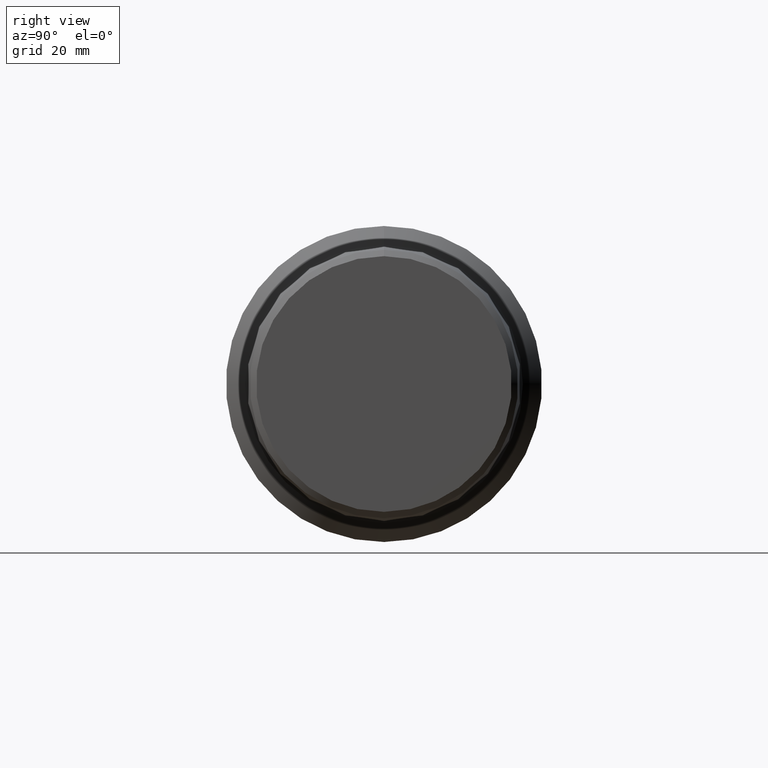
[diagram: clean part render]
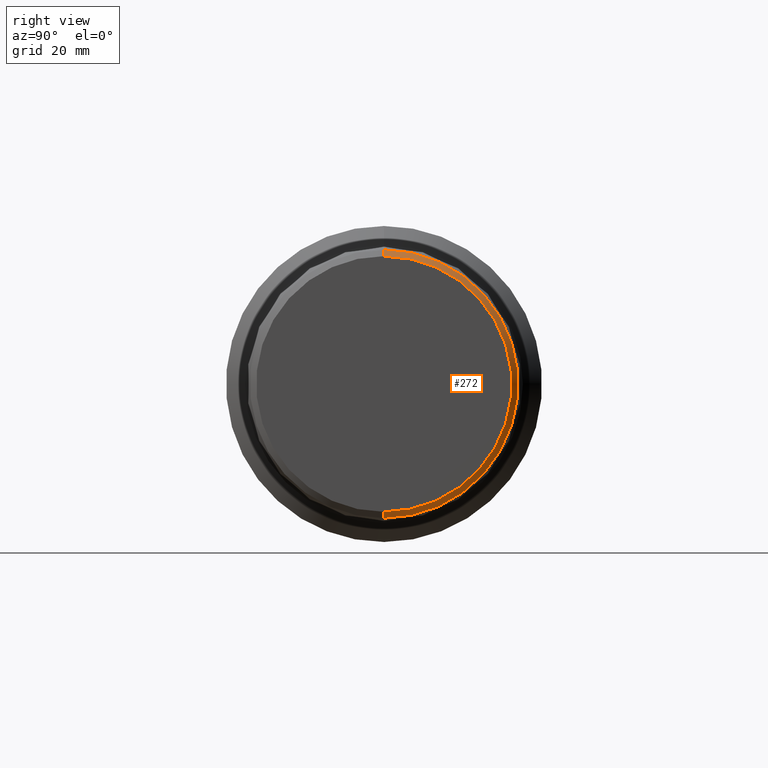
[diagram: same view with one face highlighted and labeled with its STEP entity id]
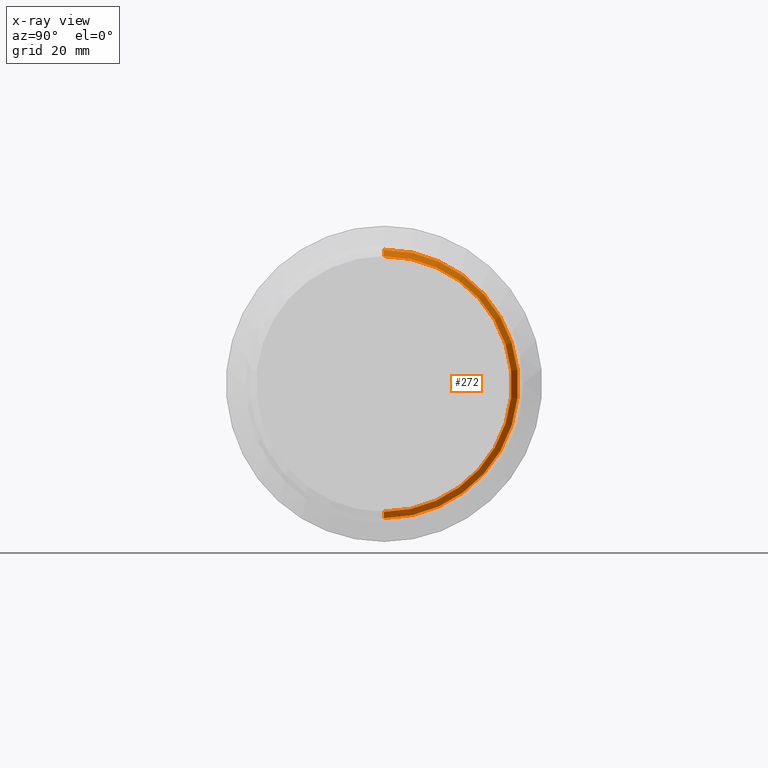
[diagram: x-ray of the same camera — body ghosted, the highlighted face saturated]
A machine part, right view. The second image highlights one B-rep face of the part: STEP entity #272.
The next image is the same camera in x-ray: the body ghosted, the highlighted face saturated — about 0% of this face is hidden behind the body in this view.
In plain terms, the highlighted conical surface has half-angle 45 deg.
Its self-contained STEP definition (entity closure, byte-faithful):
#8 = AXIS2_PLACEMENT_3D ( 'NONE', #498, #500, #566 ) ;
#21 = EDGE_CURVE ( 'NONE', #46, #307, #250, .T. ) ;
#33 = FACE_OUTER_BOUND ( 'NONE', #276, .T. ) ;
#34 = DIRECTION ( 'NONE',  ( 0.0000000000000000000, 0.0000000000000000000, 1.000000000000000000 ) ) ;
#46 = VERTEX_POINT ( 'NONE', #306 ) ;
#48 = AXIS2_PLACEMENT_3D ( 'NONE', #181, #261, #34 ) ;
#59 = ORIENTED_EDGE ( 'NONE', *, *, #323, .F. ) ;
#61 = ORIENTED_EDGE ( 'NONE', *, *, #556, .F. ) ;
#78 = DIRECTION ( 'NONE',  ( -1.000000000000000000, -0.0000000000000000000, -0.0000000000000000000 ) ) ;
#84 = CARTESIAN_POINT ( 'NONE',  ( 6.805000000000000604, 0.0000000000000000000, 0.0000000000000000000 ) ) ;
#106 = CIRCLE ( 'NONE', #207, 1.592061653312734970 ) ;
#149 = VERTEX_POINT ( 'NONE', #247 ) ;
#169 = DIRECTION ( 'NONE',  ( -0.7071067811865423547, 8.659560562354995721E-17, -0.7071067811865526798 ) ) ;
#173 = VERTEX_POINT ( 'NONE', #295 ) ;
#176 = EDGE_CURVE ( 'NONE', #173, #46, #321, .T. ) ;
#181 = CARTESIAN_POINT ( 'NONE',  ( 6.879999999999999893, 0.0000000000000000000, 0.0000000000000000000 ) ) ;
#185 = CONICAL_SURFACE ( 'NONE', #8, 1.517061653312734126, 0.7853981633974556065 ) ;
#204 = LINE ( 'NONE', #350, #573 ) ;
#207 = AXIS2_PLACEMENT_3D ( 'NONE', #84, #78, #352 ) ;
#247 = CARTESIAN_POINT ( 'NONE',  ( 6.805000000000000604, 0.0000000000000000000, 1.592061653312734970 ) ) ;
#250 = LINE ( 'NONE', #456, #550 ) ;
#261 = DIRECTION ( 'NONE',  ( -1.000000000000000000, -0.0000000000000000000, -0.0000000000000000000 ) ) ;
#272 = ADVANCED_FACE ( 'NONE', ( #33 ), #185, .T. ) ;
#276 = EDGE_LOOP ( 'NONE', ( #482, #407, #59, #61 ) ) ;
#295 = CARTESIAN_POINT ( 'NONE',  ( 6.879999999999999893, 0.0000000000000000000, 1.517061653312734126 ) ) ;
#299 = DIRECTION ( 'NONE',  ( -0.7071067811865423547, 0.0000000000000000000, 0.7071067811865526798 ) ) ;
#306 = CARTESIAN_POINT ( 'NONE',  ( 6.879999999999999893, 1.903788952806657656E-16, -1.517061653312734126 ) ) ;
#307 = VERTEX_POINT ( 'NONE', #494 ) ;
#321 = CIRCLE ( 'NONE', #48, 1.517061653312734126 ) ;
#323 = EDGE_CURVE ( 'NONE', #149, #307, #106, .T. ) ;
#350 = CARTESIAN_POINT ( 'NONE',  ( 6.879999999999999893, 0.0000000000000000000, 1.517061653312734126 ) ) ;
#352 = DIRECTION ( 'NONE',  ( 0.0000000000000000000, 0.0000000000000000000, 1.000000000000000000 ) ) ;
#407 = ORIENTED_EDGE ( 'NONE', *, *, #21, .T. ) ;
#456 = CARTESIAN_POINT ( 'NONE',  ( 6.879999999999999893, 1.857864697838631581E-16, -1.517061653312734126 ) ) ;
#482 = ORIENTED_EDGE ( 'NONE', *, *, #176, .T. ) ;
#494 = CARTESIAN_POINT ( 'NONE',  ( 6.805000000000000604, 1.983965566384761139E-16, -1.592061653312734970 ) ) ;
#498 = CARTESIAN_POINT ( 'NONE',  ( 6.879999999999999893, 0.0000000000000000000, 0.0000000000000000000 ) ) ;
#500 = DIRECTION ( 'NONE',  ( -1.000000000000000000, -0.0000000000000000000, -0.0000000000000000000 ) ) ;
#550 = VECTOR ( 'NONE', #169, 39.37007874015748143 ) ;
#556 = EDGE_CURVE ( 'NONE', #173, #149, #204, .T. ) ;
#566 = DIRECTION ( 'NONE',  ( 0.0000000000000000000, 0.0000000000000000000, 1.000000000000000000 ) ) ;
#573 = VECTOR ( 'NONE', #299, 39.37007874015748143 ) ;